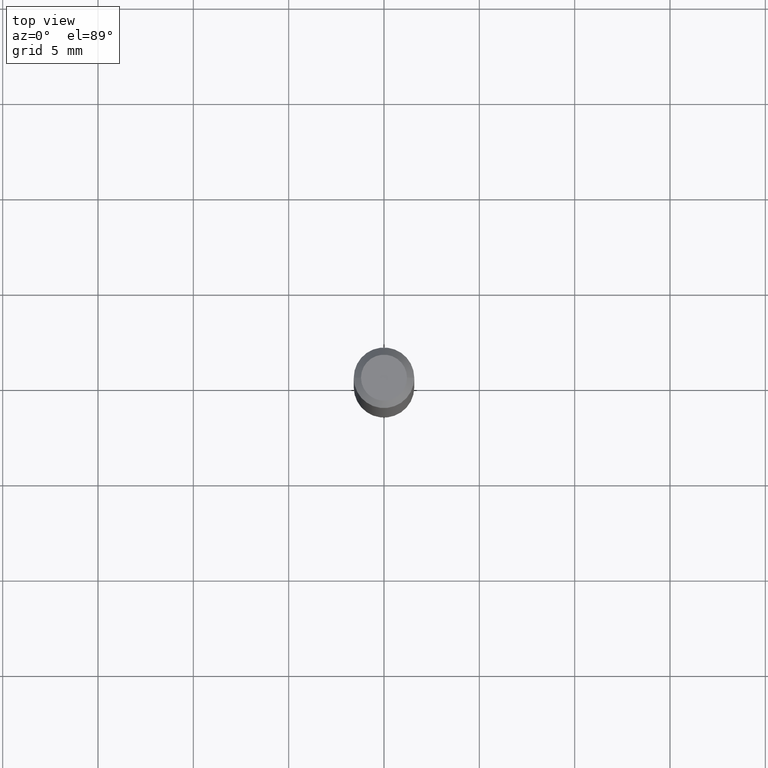
[diagram: clean part render]
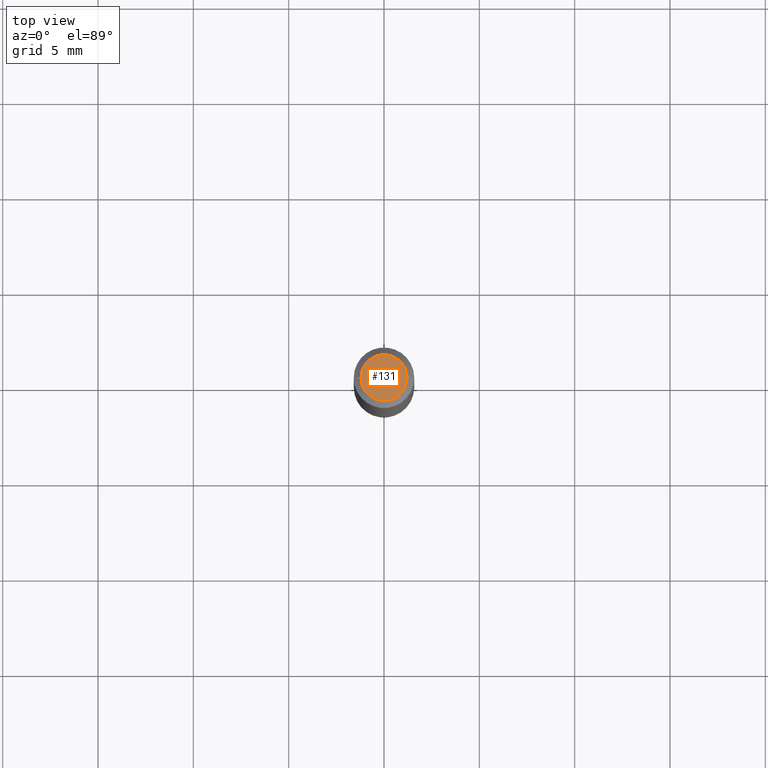
[diagram: same view with one face highlighted and labeled with its STEP entity id]
A machine part, top view. The second image highlights one B-rep face of the part: STEP entity #131.
In plain terms, the highlighted planar face has unit normal (0, -0, -1).
Its self-contained STEP definition (entity closure, byte-faithful):
#23 = EDGE_LOOP ( 'NONE', ( #461, #239 ) ) ;
#24 = VERTEX_POINT ( 'NONE', #37 ) ;
#37 = CARTESIAN_POINT ( 'NONE',  ( -0.04749999999999999362, 3.578768372314211985E-16, 8.618106228653636715E-17 ) ) ;
#76 = AXIS2_PLACEMENT_3D ( 'NONE', #449, #337, #271 ) ;
#88 = EDGE_CURVE ( 'NONE', #418, #24, #368, .T. ) ;
#125 = DIRECTION ( 'NONE',  ( -1.000000000000000000, 6.982962677686265922E-15, -4.876176775795935793E-29 ) ) ;
#131 = ADVANCED_FACE ( 'NONE', ( #256 ), #447, .F. ) ;
#146 = AXIS2_PLACEMENT_3D ( 'NONE', #257, #262, #125 ) ;
#175 = DIRECTION ( 'NONE',  ( 1.000000000000000000, -6.982962677686267499E-15, 4.884662768193073002E-29 ) ) ;
#239 = ORIENTED_EDGE ( 'NONE', *, *, #88, .T. ) ;
#256 = FACE_OUTER_BOUND ( 'NONE', #23, .T. ) ;
#257 = CARTESIAN_POINT ( 'NONE',  ( 3.316907271900976096E-16, 0.04749999999999999362, -1.227548324517800049E-16 ) ) ;
#262 = DIRECTION ( 'NONE',  ( 2.438088387897960049E-29, -3.491481338843145188E-15, -1.000000000000000000 ) ) ;
#271 = DIRECTION ( 'NONE',  ( 1.000000000000000000, -6.982962677686267499E-15, 4.884662768193073002E-29 ) ) ;
#275 = EDGE_CURVE ( 'NONE', #24, #418, #277, .T. ) ;
#277 = CIRCLE ( 'NONE', #76, 0.04749999999999999362 ) ;
#288 = CARTESIAN_POINT ( 'NONE',  ( -2.107530995056288845E-45, 3.008995707351289501E-31, 8.618106228653878303E-17 ) ) ;
#290 = DIRECTION ( 'NONE',  ( -2.445468806185136597E-29, 3.491481338843145583E-15, 1.000000000000000000 ) ) ;
#337 = DIRECTION ( 'NONE',  ( -2.445468806185136597E-29, 3.491481338843145583E-15, 1.000000000000000000 ) ) ;
#368 = CIRCLE ( 'NONE', #384, 0.04749999999999999362 ) ;
#369 = CARTESIAN_POINT ( 'NONE',  ( 0.04749999999999999362, -4.035134999187576651E-16, 8.618106228654135916E-17 ) ) ;
#384 = AXIS2_PLACEMENT_3D ( 'NONE', #288, #290, #175 ) ;
#418 = VERTEX_POINT ( 'NONE', #369 ) ;
#447 = PLANE ( 'NONE',  #146 ) ;
#449 = CARTESIAN_POINT ( 'NONE',  ( -2.107530995056288845E-45, 3.008995707351289501E-31, 8.618106228653878303E-17 ) ) ;
#461 = ORIENTED_EDGE ( 'NONE', *, *, #275, .T. ) ;